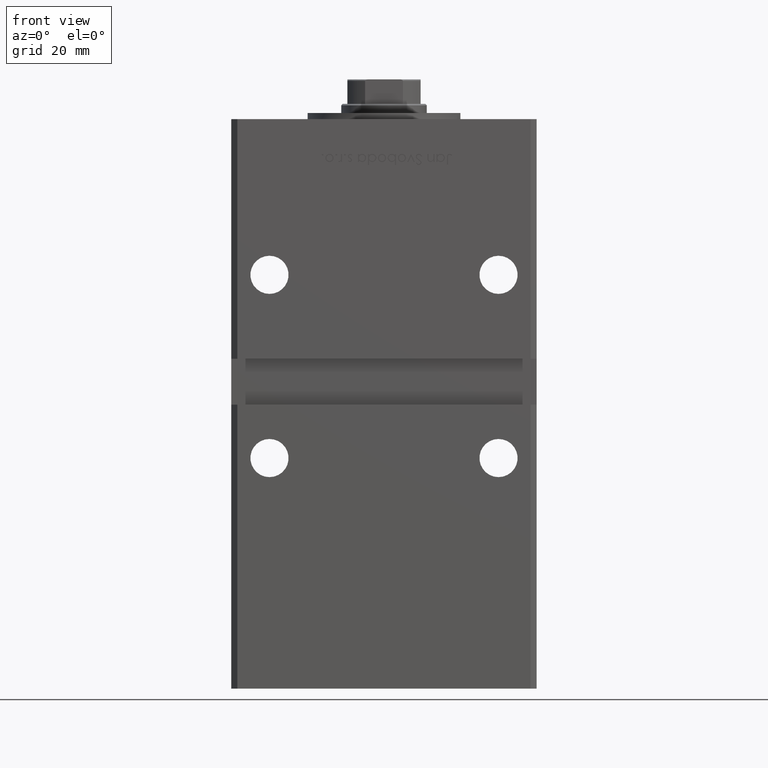
[diagram: clean part render]
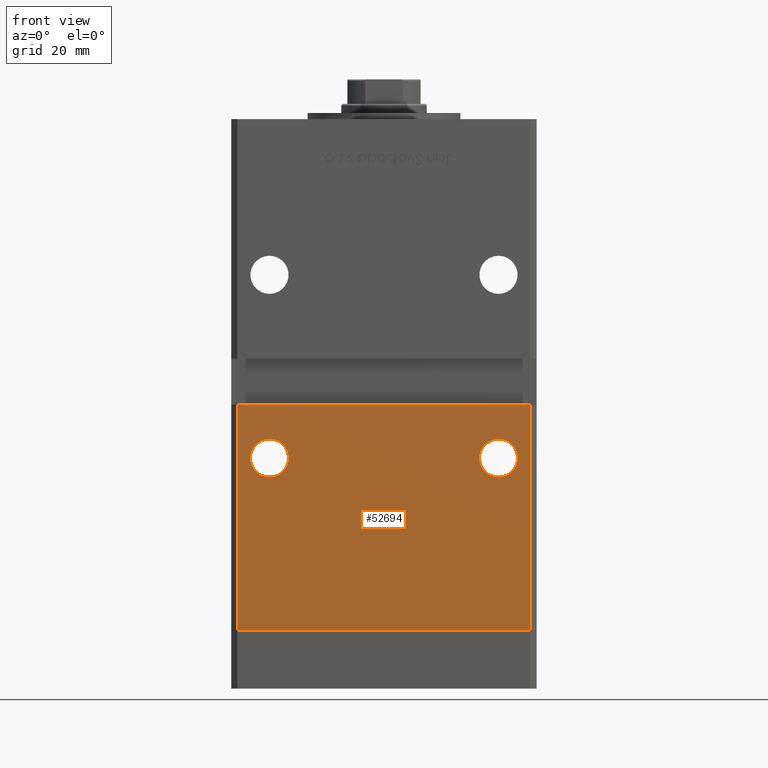
[diagram: same view with one face highlighted and labeled with its STEP entity id]
A machine part, front view. The second image highlights one B-rep face of the part: STEP entity #52694.
In plain terms, the highlighted planar face has unit normal (0, 1, 0).
Its self-contained STEP definition (entity closure, byte-faithful):
#158 = CARTESIAN_POINT ( 'NONE',  ( 47.99999999999998579, -43.50000000000000000, 148.5000000000000000 ) ) ;
#2042 = CARTESIAN_POINT ( 'NONE',  ( -37.50000000000000000, -43.50000000000000000, 50.24999999999998579 ) ) ;
#2300 = EDGE_LOOP ( 'NONE', ( #15736, #47318 ) ) ;
#2592 = DIRECTION ( 'NONE',  ( 1.000000000000000000, 0.000000000000000000, 0.000000000000000000 ) ) ;
#4078 = CIRCLE ( 'NONE', #4908, 6.249999999999998224 ) ;
#4908 = AXIS2_PLACEMENT_3D ( 'NONE', #12467, #11941, #24046 ) ;
#4931 = VERTEX_POINT ( 'NONE', #6623 ) ;
#6279 = DIRECTION ( 'NONE',  ( 0.000000000000000000, 0.000000000000000000, 1.000000000000000000 ) ) ;
#6539 = CARTESIAN_POINT ( 'NONE',  ( 37.50000000000000000, -43.50000000000000000, 56.49999999999998579 ) ) ;
#6623 = CARTESIAN_POINT ( 'NONE',  ( -37.50000000000000000, -43.50000000000000000, 62.74999999999998579 ) ) ;
#7451 = CARTESIAN_POINT ( 'NONE',  ( -37.50000000000000000, -43.50000000000000000, 56.49999999999998579 ) ) ;
#7670 = CARTESIAN_POINT ( 'NONE',  ( -49.99999999999998579, -43.50000000000000000, 74.00000000000000000 ) ) ;
#8513 = AXIS2_PLACEMENT_3D ( 'NONE', #23509, #52609, #15703 ) ;
#9425 = VECTOR ( 'NONE', #31770, 1000.000000000000000 ) ;
#9745 = CARTESIAN_POINT ( 'NONE',  ( 37.50000000000000000, -43.50000000000000000, 62.74999999999998579 ) ) ;
#10018 = CARTESIAN_POINT ( 'NONE',  ( -47.99999999999998579, -43.50000000000000000, 148.5000000000000000 ) ) ;
#10246 = EDGE_LOOP ( 'NONE', ( #48800, #35172 ) ) ;
#10560 = DIRECTION ( 'NONE',  ( 0.000000000000000000, -0.000000000000000000, 1.000000000000000000 ) ) ;
#11941 = DIRECTION ( 'NONE',  ( 0.000000000000000000, 1.000000000000000000, 0.000000000000000000 ) ) ;
#12110 = CIRCLE ( 'NONE', #24980, 6.249999999999998224 ) ;
#12467 = CARTESIAN_POINT ( 'NONE',  ( 37.50000000000000000, -43.50000000000000000, 56.49999999999998579 ) ) ;
#13026 = DIRECTION ( 'NONE',  ( -0.000000000000000000, -0.000000000000000000, -1.000000000000000000 ) ) ;
#13776 = FACE_OUTER_BOUND ( 'NONE', #23746, .T. ) ;
#15703 = DIRECTION ( 'NONE',  ( 0.000000000000000000, 0.000000000000000000, 1.000000000000000000 ) ) ;
#15736 = ORIENTED_EDGE ( 'NONE', *, *, #50061, .T. ) ;
#16201 = CARTESIAN_POINT ( 'NONE',  ( -47.99999999999998579, -43.50000000000000000, 74.00000000000000000 ) ) ;
#16418 = VERTEX_POINT ( 'NONE', #21991 ) ;
#16818 = VERTEX_POINT ( 'NONE', #33682 ) ;
#17547 = FACE_BOUND ( 'NONE', #10246, .T. ) ;
#17550 = VERTEX_POINT ( 'NONE', #2042 ) ;
#21991 = CARTESIAN_POINT ( 'NONE',  ( 47.99999999999998579, -43.50000000000000000, 0.000000000000000000 ) ) ;
#23175 = EDGE_CURVE ( 'NONE', #39460, #16418, #42132, .T. ) ;
#23509 = CARTESIAN_POINT ( 'NONE',  ( -37.50000000000000000, -43.50000000000000000, 56.49999999999998579 ) ) ;
#23746 = EDGE_LOOP ( 'NONE', ( #40703, #43689, #32638, #32103 ) ) ;
#23815 = CARTESIAN_POINT ( 'NONE',  ( -47.99999999999998579, -43.50000000000000000, 0.000000000000000000 ) ) ;
#23982 = CIRCLE ( 'NONE', #8513, 6.249999999999998224 ) ;
#24046 = DIRECTION ( 'NONE',  ( 0.000000000000000000, 0.000000000000000000, 1.000000000000000000 ) ) ;
#24980 = AXIS2_PLACEMENT_3D ( 'NONE', #7451, #52693, #48928 ) ;
#25742 = AXIS2_PLACEMENT_3D ( 'NONE', #6539, #47223, #6279 ) ;
#26434 = DIRECTION ( 'NONE',  ( 0.000000000000000000, 1.000000000000000000, 0.000000000000000000 ) ) ;
#27191 = LINE ( 'NONE', #32298, #9425 ) ;
#27751 = EDGE_CURVE ( 'NONE', #38297, #16818, #4078, .T. ) ;
#29574 = LINE ( 'NONE', #46027, #48856 ) ;
#30353 = CARTESIAN_POINT ( 'NONE',  ( 47.99999999999998579, -43.50000000000000000, 74.00000000000000000 ) ) ;
#31770 = DIRECTION ( 'NONE',  ( 1.000000000000000000, 0.000000000000000000, 0.000000000000000000 ) ) ;
#31877 = EDGE_CURVE ( 'NONE', #16818, #38297, #49868, .T. ) ;
#32103 = ORIENTED_EDGE ( 'NONE', *, *, #46421, .T. ) ;
#32298 = CARTESIAN_POINT ( 'NONE',  ( -47.99999999999998579, -43.50000000000000000, 0.000000000000000000 ) ) ;
#32481 = EDGE_CURVE ( 'NONE', #53137, #39460, #52114, .T. ) ;
#32638 = ORIENTED_EDGE ( 'NONE', *, *, #41461, .T. ) ;
#33682 = CARTESIAN_POINT ( 'NONE',  ( 37.50000000000000000, -43.50000000000000000, 50.24999999999998579 ) ) ;
#35172 = ORIENTED_EDGE ( 'NONE', *, *, #31877, .T. ) ;
#37138 = VERTEX_POINT ( 'NONE', #23815 ) ;
#38297 = VERTEX_POINT ( 'NONE', #9745 ) ;
#39272 = VECTOR ( 'NONE', #2592, 1000.000000000000000 ) ;
#39460 = VERTEX_POINT ( 'NONE', #30353 ) ;
#40703 = ORIENTED_EDGE ( 'NONE', *, *, #23175, .F. ) ;
#41461 = EDGE_CURVE ( 'NONE', #53137, #37138, #29574, .T. ) ;
#42132 = LINE ( 'NONE', #158, #47098 ) ;
#43689 = ORIENTED_EDGE ( 'NONE', *, *, #32481, .F. ) ;
#44801 = EDGE_CURVE ( 'NONE', #17550, #4931, #23982, .T. ) ;
#44896 = AXIS2_PLACEMENT_3D ( 'NONE', #10018, #26434, #10560 ) ;
#46027 = CARTESIAN_POINT ( 'NONE',  ( -47.99999999999998579, -43.50000000000000000, 148.5000000000000000 ) ) ;
#46421 = EDGE_CURVE ( 'NONE', #37138, #16418, #27191, .T. ) ;
#46935 = FACE_BOUND ( 'NONE', #2300, .T. ) ;
#47098 = VECTOR ( 'NONE', #13026, 1000.000000000000000 ) ;
#47223 = DIRECTION ( 'NONE',  ( 0.000000000000000000, 1.000000000000000000, 0.000000000000000000 ) ) ;
#47318 = ORIENTED_EDGE ( 'NONE', *, *, #44801, .T. ) ;
#47473 = PLANE ( 'NONE',  #44896 ) ;
#48800 = ORIENTED_EDGE ( 'NONE', *, *, #27751, .T. ) ;
#48856 = VECTOR ( 'NONE', #50582, 1000.000000000000000 ) ;
#48928 = DIRECTION ( 'NONE',  ( 0.000000000000000000, 0.000000000000000000, 1.000000000000000000 ) ) ;
#49868 = CIRCLE ( 'NONE', #25742, 6.249999999999998224 ) ;
#50061 = EDGE_CURVE ( 'NONE', #4931, #17550, #12110, .T. ) ;
#50582 = DIRECTION ( 'NONE',  ( -0.000000000000000000, -0.000000000000000000, -1.000000000000000000 ) ) ;
#52114 = LINE ( 'NONE', #7670, #39272 ) ;
#52609 = DIRECTION ( 'NONE',  ( 0.000000000000000000, 1.000000000000000000, 0.000000000000000000 ) ) ;
#52693 = DIRECTION ( 'NONE',  ( 0.000000000000000000, 1.000000000000000000, 0.000000000000000000 ) ) ;
#52694 = ADVANCED_FACE ( 'NONE', ( #46935, #17547, #13776 ), #47473, .F. ) ;
#53137 = VERTEX_POINT ( 'NONE', #16201 ) ;